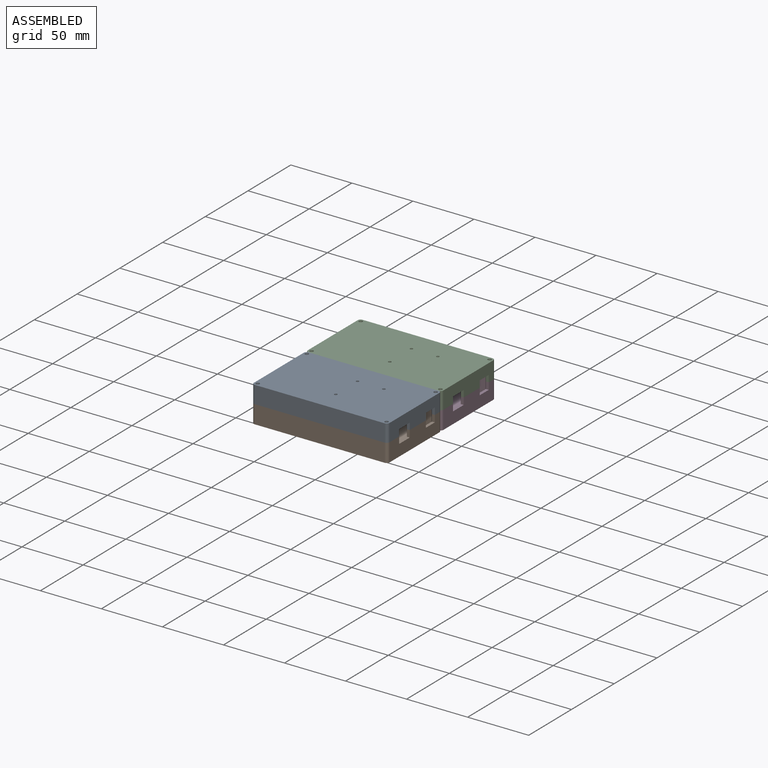
[diagram: assembled view]
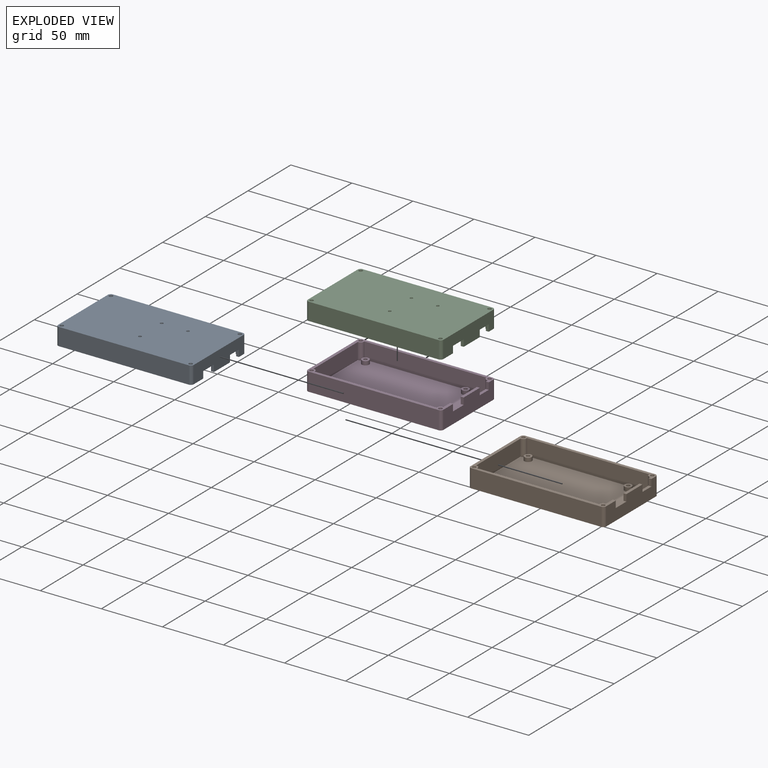
[diagram: exploded view]
GUIDED TOUR — MATED ASSEMBLY (Onshape document 58dac12523504c0f747242aa, AutoMate assembly 58dac12523504c0f747242aa_5d81eeedf38affa4e3de21fd_76b90431ef41d41ae67b2999_default)

This assembly has 4 components, labeled P0..P3 below (a component is one placed occurrence of a part; the same part can appear more than once), held together by 9 mates. A mate is a constraint between two components; its type names the relative motion it leaves free:
  CYLINDRICAL — leaves both rotation about and translation along the listed axis free,
  PLANAR — leaves sliding in the plane through the listed point (normal = the listed direction) and rotation about that normal free.
Axis/direction vectors are unit vectors and 'through' points are millimeter coordinates, both in the assembly's world frame.

MATES
  1. PLANAR "Planar 6": P0 <-> P1, direction (-1.000, 0.000, 0.000) through (-55.56, -84.02, 25.72) mm
  2. CYLINDRICAL "Cylindrical 1": P2 <-> P3, axis (0.000, 0.000, 1.000) through (52.78, -28.76, 14.92) mm
  3. PLANAR "Planar 4": P1 <-> P3, direction (0.000, 0.000, -1.000) through (0.00, -63.07, 0.00) mm
  4. PLANAR "Planar 5": P0 <-> P1, direction (0.000, 0.000, -1.000) through (-53.18, -37.09, 14.92) mm
  5. PLANAR "Planar 7": P0 <-> P1, direction (0.000, -1.000, 0.000) through (0.00, -94.60, 22.07) mm
  6. PLANAR "Planar 3": P1 <-> P3, direction (-1.000, 0.000, 0.000) through (-55.56, -63.07, 0.00) mm
  7. CYLINDRICAL "Cylindrical 2": P2 <-> P3, axis (0.000, 0.000, 1.000) through (-52.78, -28.76, 14.92) mm
  8. PLANAR "Planar 1": P3 <-> P2, direction (0.000, 0.000, 1.000) through (-52.78, -28.76, 14.92) mm
  9. PLANAR "Planar 2": P1 <-> P3, direction (0.000, 1.000, 0.000) through (0.00, -31.53, 7.46) mm

ASSEMBLY ORDER
  1. P3 — the base component [order verified]
  2. P2 [order verified]
  3. P1 [order verified]
  4. P0 [order verified]
Order-tag legend:
  [order verified] — this step's position reverses a verified removal order: the component was checked to insert without passing through the ones already placed.

Of the 4 components, 2 carry the full construction recipe — the FeatureScript program that regenerates the part's solid from scratch; the rest are supplied as boundary geometry only.
Each toured component is shown spotlighted twice — in the assembled view, then in the exploded view, where a leader line traces a displaced component back to its assembled socket (saturated green if recipe-attached, orange if geometry-only; every other component desaturated gray) — followed by its recipe or geometry summary and the mates that hold it.
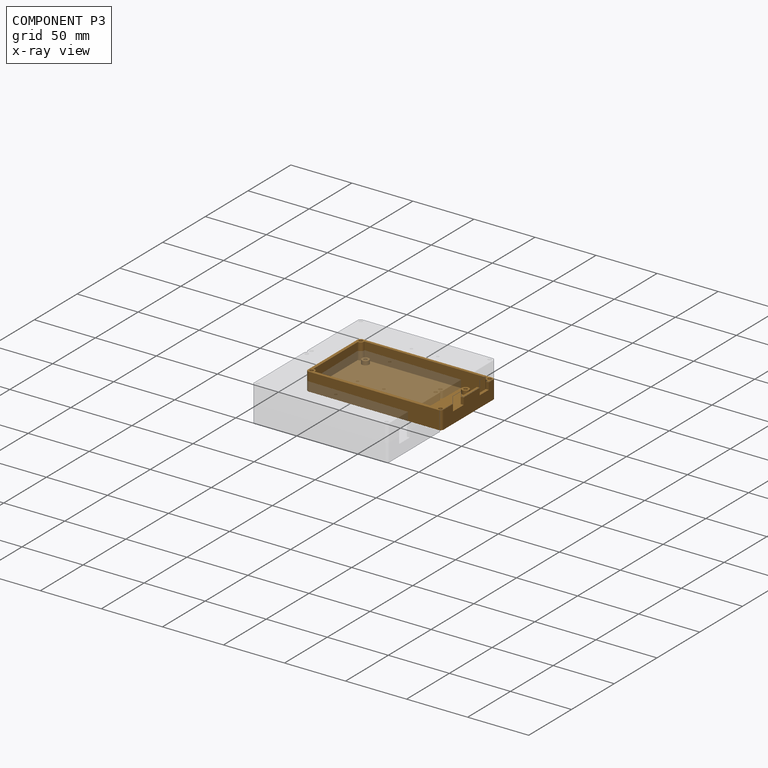
[diagram: component P3 — x-ray view]
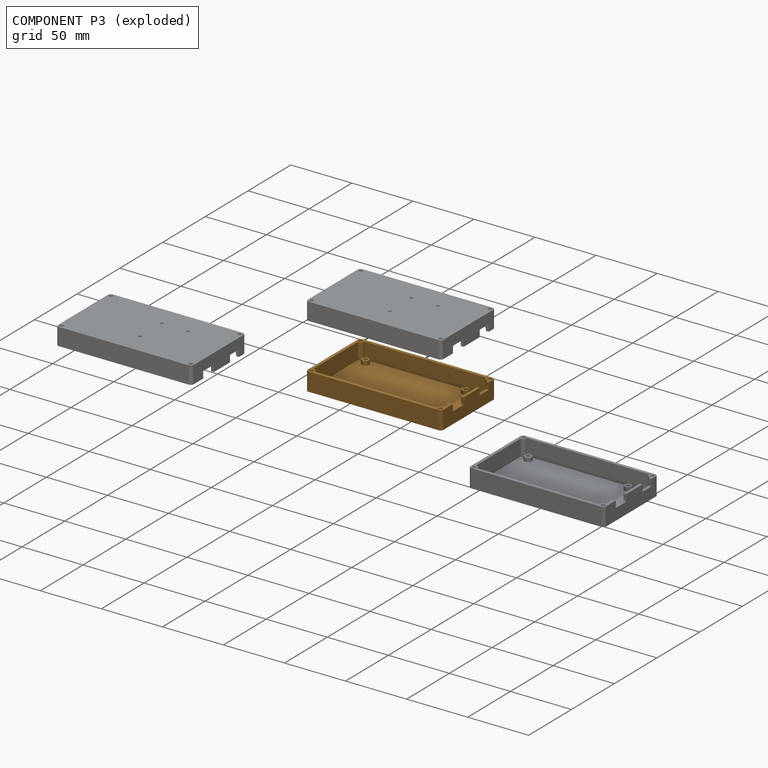
[diagram: component P3 — exploded]
COMPONENT P3 — geometry summary (no construction recipe available for this part):
  bounding box: 111.1 x 63.1 x 14.9 mm
  B-rep topology: 1 solid, 54 faces, 268 edges
  volume: 21808 mm^3 (21% of its bounding box)
Held by: CYLINDRICAL mate "Cylindrical 1" to P2; PLANAR mate "Planar 4" to P1; PLANAR mate "Planar 3" to P1; CYLINDRICAL mate "Cylindrical 2" to P2; PLANAR mate "Planar 1" to P2; PLANAR mate "Planar 2" to P1.
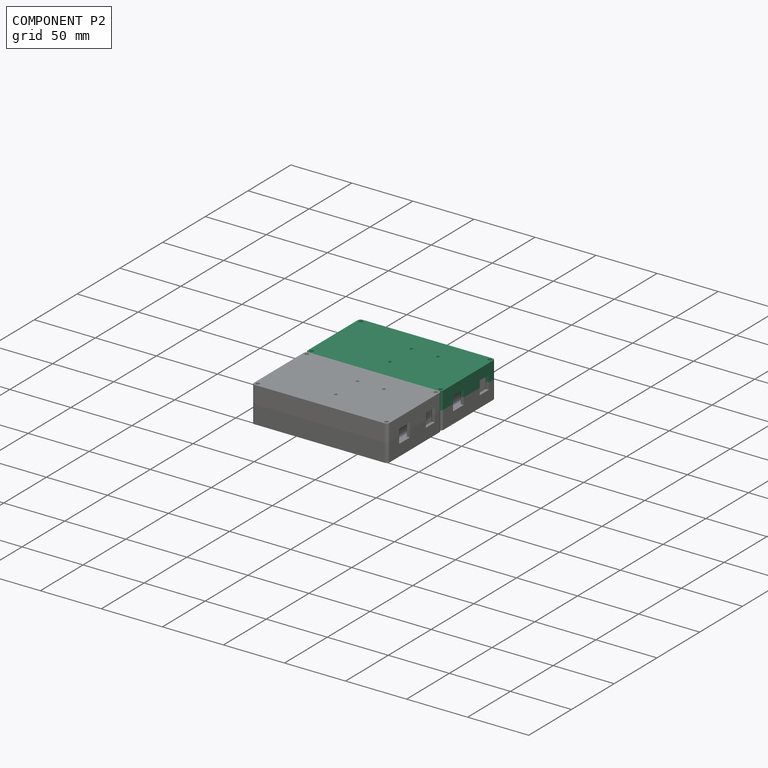
[diagram: component P2 — assembled]
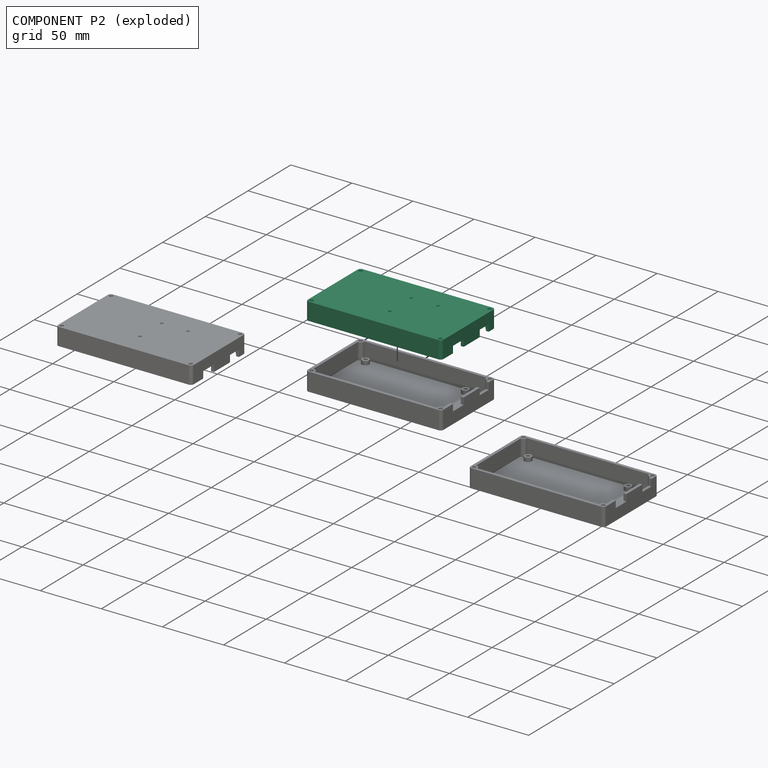
[diagram: component P2 — exploded]
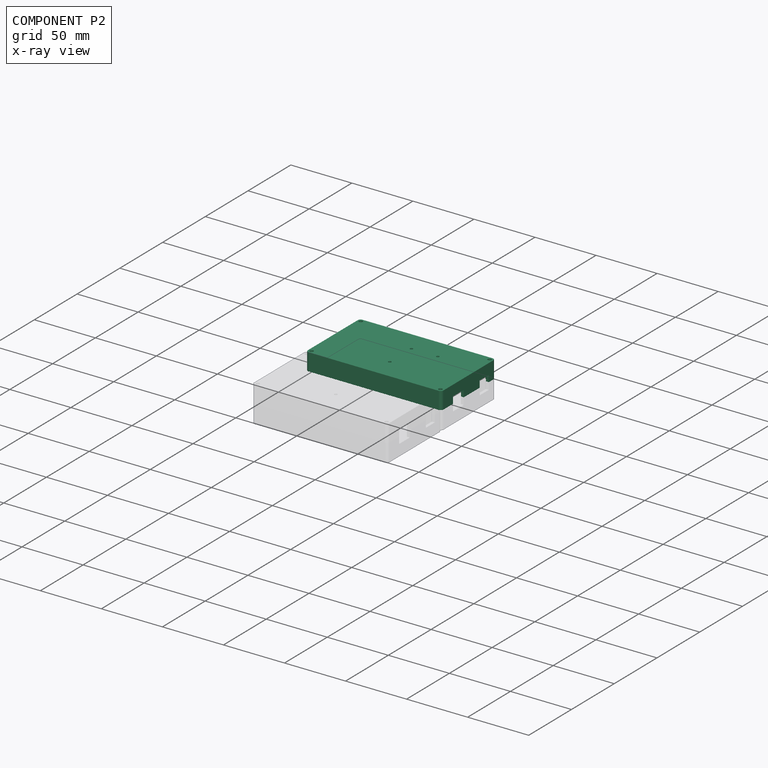
[diagram: component P2 — x-ray view]
COMPONENT P2 — same part as P0 (CADFS 00658293); its construction recipe is shown at P0.
Held by: CYLINDRICAL mate "Cylindrical 1" to P3; CYLINDRICAL mate "Cylindrical 2" to P3; PLANAR mate "Planar 1" to P3.
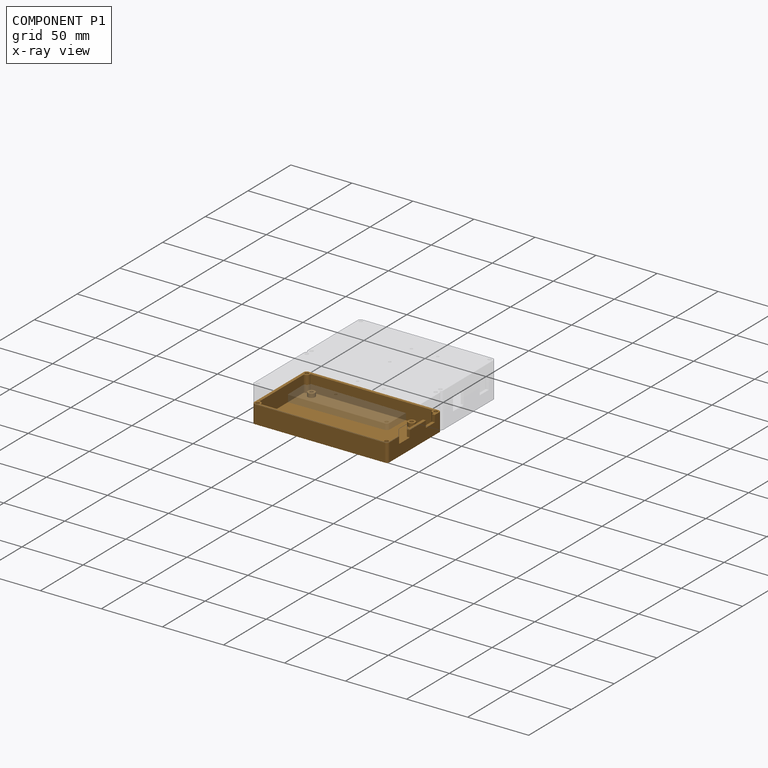
[diagram: component P1 — x-ray view]
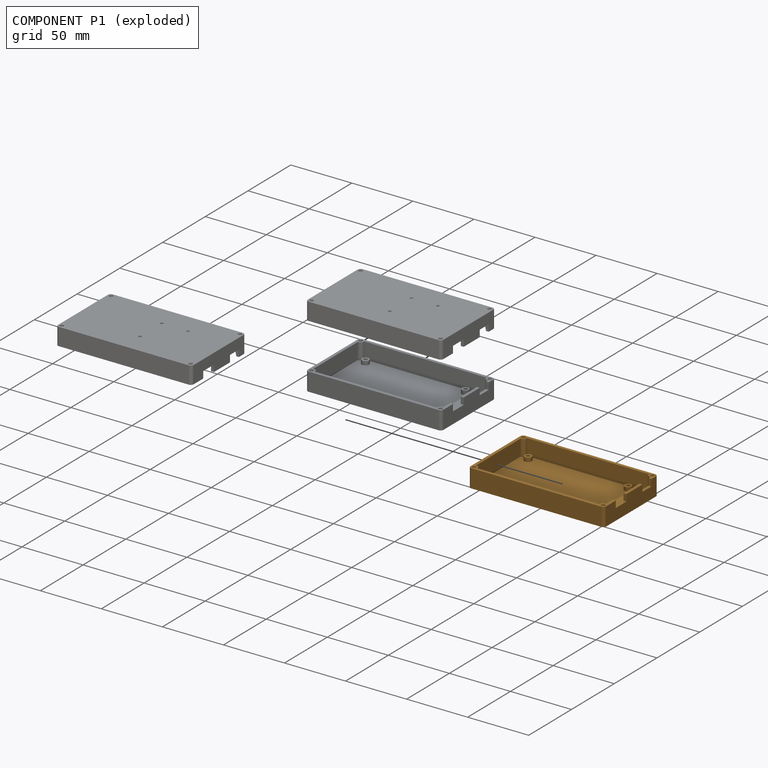
[diagram: component P1 — exploded]
COMPONENT P1 — geometry summary (no construction recipe available for this part):
  bounding box: 111.1 x 63.1 x 14.9 mm
  B-rep topology: 1 solid, 54 faces, 268 edges
  volume: 21808 mm^3 (21% of its bounding box)
Held by: PLANAR mate "Planar 6" to P0; PLANAR mate "Planar 4" to P3; PLANAR mate "Planar 5" to P0; PLANAR mate "Planar 7" to P0; PLANAR mate "Planar 3" to P3; PLANAR mate "Planar 2" to P3.
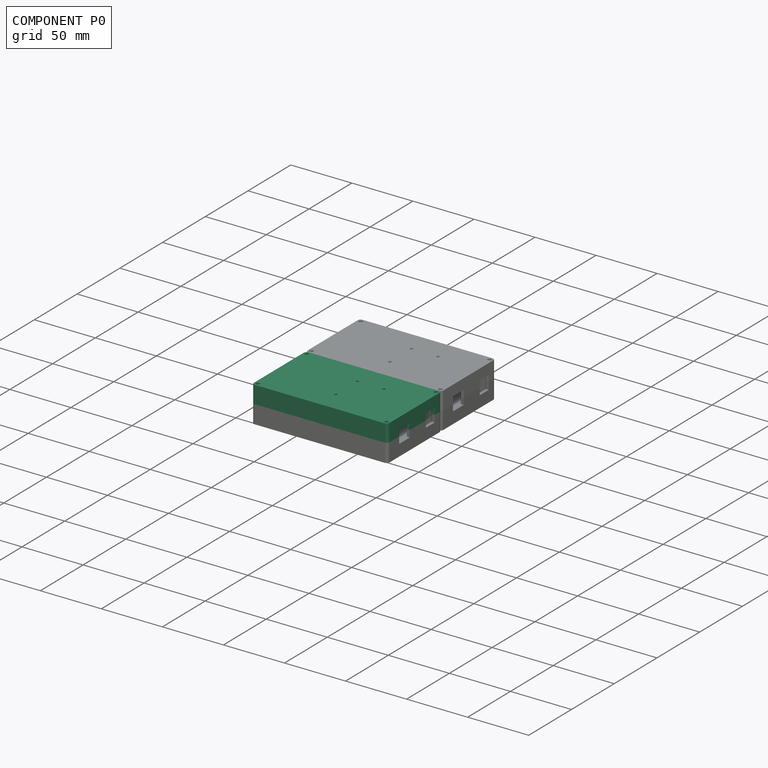
[diagram: component P0 — assembled]
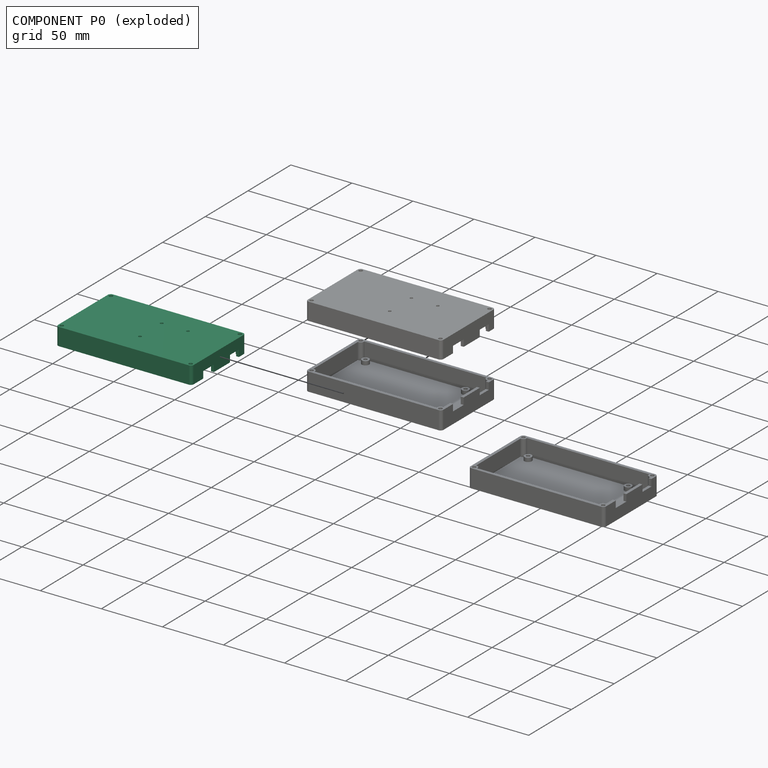
[diagram: component P0 — exploded]
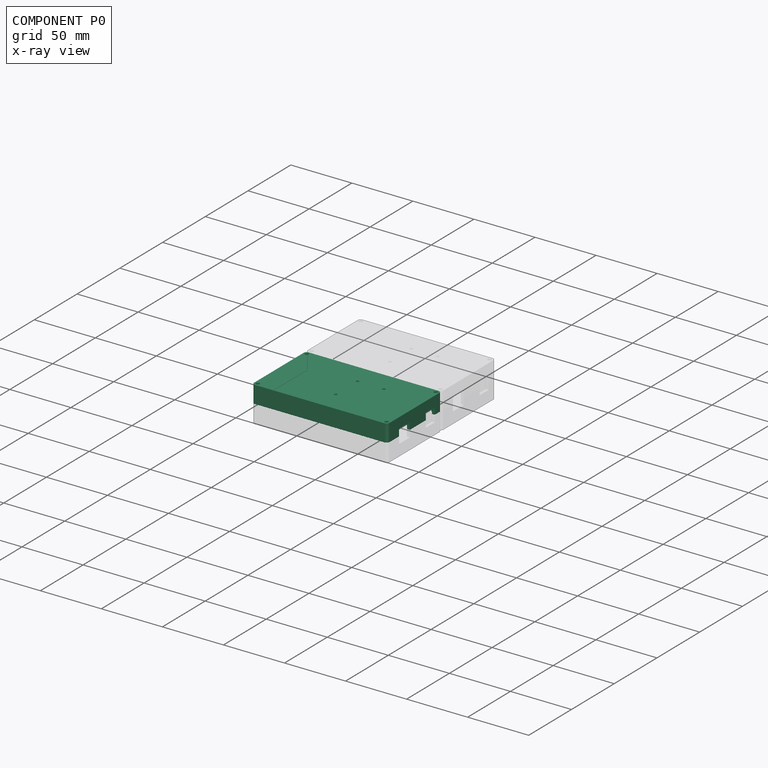
[diagram: component P0 — x-ray view]
COMPONENT P0 — recipe-attached (CADFS 00658293, mesh-verified: the recipe's output STEP matches this component's geometry to below the mesh-comparison resolution (tessellation chordal tolerance ~0.193 mm)).
Held by: PLANAR mate "Planar 6" to P1; PLANAR mate "Planar 5" to P1; PLANAR mate "Planar 7" to P1.
Construction recipe (FeatureScript — the CAD program that rebuilds this solid; sketch coordinates are in the units given by the * unit suffixes, e.g. mm):

FeatureScript 1511;
import(path : "onshape/std/geometry.fs", version : "1511.0");
import(path : "onshape/std/common.fs", version : "1511.0");
const mm = millimeter;
const VERTEX = EntityType.VERTEX;
const EDGE = EntityType.EDGE;
const FACE = EntityType.FACE;
const BODY = EntityType.BODY;
function v(x, y){return vector(x, y);}
function OD(order){return orderDisambiguation(order);}
function OSD(set){return originalSetDisambiguation(set);}
function TD(topology){return topologyDisambiguation(topology);}
function TDD(query){return trueDependencyDisambiguation(query);}
function sQuery(a, b, c) {return sketchEntityQuery(a, b, c);}

annotation { "Feature Type Name" : "Feature", "Feature Type Description" : "" }
export const myFeature = defineFeature(function(context is Context, id is Id, definition is map)
    precondition{}
    {
        {
            var Q0;
            Q0=qCreatedBy(makeId("Top.planeOp"),FACE);
            var sketch = newSketch(context, id + "F0", { "sketchPlane" : qUnion([Q0])});
            skLineSegment(sketch, "E0.bottom", {"start": v(50.8, 26.77) * mm, "end": v(-50.8, 26.77) * mm});
            skLineSegment(sketch, "E0.top", {"start": v(50.8, -26.77) * mm, "end": v(-50.8, -26.77) * mm});
            skLineSegment(sketch, "E0.left", {"start": v(50.8, 26.77) * mm, "end": v(50.8, -26.77) * mm});
            skLineSegment(sketch, "E0.right", {"start": v(-50.8, 26.77) * mm, "end": v(-50.8, -26.77) * mm});
            skPoint(sketch, "E0.middle", {"position": v(0, 0) * mm});
            skSolve(sketch);
        }
        {
            var Q0;
            Q0=qCreatedBy(makeId("Top.planeOp"),FACE);
            var sketch = newSketch(context, id + "F1", { "sketchPlane" : qUnion([Q0])});
            skLineSegment(sketch, "E1.bottom", {"start": v(55.56, 31.53) * mm, "end": v(-55.56, 31.53) * mm});
            skLineSegment(sketch, "E1.top", {"start": v(55.56, -31.53) * mm, "end": v(-55.56, -31.53) * mm});
            skLineSegment(sketch, "E1.left", {"start": v(55.56, 31.53) * mm, "end": v(55.56, -31.53) * mm});
            skLineSegment(sketch, "E1.right", {"start": v(-55.56, 31.53) * mm, "end": v(-55.56, -31.53) * mm});
            skPoint(sketch, "E1.middle", {"position": v(0, 0) * mm});
            skLineSegment(sketch, "E2.bottom", {"start": v(53.97, 29.95) * mm, "end": v(-53.98, 29.95) * mm, "construction": true});
            skLineSegment(sketch, "E2.top", {"start": v(53.98, -29.95) * mm, "end": v(-53.97, -29.95) * mm, "construction": true});
            skLineSegment(sketch, "E2.left", {"start": v(53.97, 29.95) * mm, "end": v(53.98, -29.95) * mm, "construction": true});
            skLineSegment(sketch, "E2.right", {"start": v(-53.98, 29.95) * mm, "end": v(-53.97, -29.95) * mm, "construction": true});
            skSolve(sketch);
        }
        {
            var Q0;
            Q0=makeQuery(id+"F1.imprint","IMPRINT",FACE,{"disambiguationData":[TD([[makeQuery(id+"F1.imprint","IMPRINT",EDGE,{"derivedFrom":sQuery(id+"F1.wireOp",EDGE,"E1.bottom")}),1.0]])]});
            extrude(context, id + "F2", {"entities" : qUnion([Q0]), "depth" : 1.59 * mm, "offsetDistance" : 25.4 * mm});
        }
        {
            var Q0;
            Q0=makeQuery(id+"F2.opExtrude","CAP_FACE",FACE,{"disambiguationData":[OSD([sQuery(id+"F1.wireOp",EDGE,"E1.bottom"),sQuery(id+"F1.wireOp",EDGE,"E1.top"),sQuery(id+"F1.wireOp",EDGE,"E1.left"),sQuery(id+"F1.wireOp",EDGE,"E1.right")])],"isStart":false});
            var sketch = newSketch(context, id + "F3", { "sketchPlane" : qUnion([Q0])});
            skLineSegment(sketch, "E3.bottom", {"start": v(55.56, 31.53) * mm, "end": v(-55.56, 31.53) * mm});
            skLineSegment(sketch, "E3.top", {"start": v(55.56, -31.53) * mm, "end": v(-55.56, -31.53) * mm});
            skLineSegment(sketch, "E3.left", {"start": v(55.56, 31.53) * mm, "end": v(55.56, -31.53) * mm});
            skLineSegment(sketch, "E3.right", {"start": v(-55.56, 31.53) * mm, "end": v(-55.56, -31.53) * mm});
            skPoint(sketch, "E3.middle", {"position": v(0, 0) * mm});
            skLineSegment(sketch, "E4.left", {"start": v(53.18, 25.98) * mm, "end": v(53.18, -25.98) * mm});
            skLineSegment(sketch, "E4.right", {"start": v(-53.18, 25.98) * mm, "end": v(-53.18, -25.98) * mm});
            skArc(sketch, "E5", {"start": v(-52.78, 25.98) * mm, "mid": v(-50.82, 26.8) * mm, "end": v(-50, 28.76) * mm});
            skCircle(sketch, "E6", {"center": v(-52.78, 28.76) * mm, "radius": 1.5 * mm});
            skLineSegment(sketch, "E7", {"start": v(-50, 28.76) * mm, "end": v(-50, 29.15) * mm});
            skLineSegment(sketch, "E8", {"start": v(-52.78, 25.98) * mm, "end": v(-53.18, 25.98) * mm});
            skLineSegment(sketch, "E9", {"start": v(-55.56, 31.53) * mm, "end": v(-50.82, 26.8) * mm, "construction": true});
            skPoint(sketch, "E10", {"position": v(-53.2, 29.16) * mm});
            skPoint(sketch, "E11.orphan", {"position": v(-53.18, 37.1) * mm});
            skCircle(sketch, "E12.MirrorC", {"center": v(-52.78, -28.76) * mm, "radius": 1.5 * mm});
            skLineSegment(sketch, "E13.MirrorCS", {"start": v(-52.78, -25.98) * mm, "end": v(-53.18, -25.98) * mm});
            skArc(sketch, "E14.MirrorCS", {"start": v(-52.78, -25.98) * mm, "mid": v(-50.82, -26.8) * mm, "end": v(-50, -28.76) * mm});
            skLineSegment(sketch, "E15.MirrorCS", {"start": v(-50, -28.76) * mm, "end": v(-50, -29.15) * mm});
            skCircle(sketch, "E16.MirrorC", {"center": v(52.78, 28.76) * mm, "radius": 1.5 * mm});
            skLineSegment(sketch, "E17.MirrorCS", {"start": v(50, 28.76) * mm, "end": v(50, 29.15) * mm});
            skArc(sketch, "E18.MirrorCS", {"start": v(52.78, 25.98) * mm, "mid": v(50.82, 26.8) * mm, "end": v(50, 28.76) * mm});
            skLineSegment(sketch, "E19.MirrorCS", {"start": v(52.78, 25.98) * mm, "end": v(53.18, 25.98) * mm});
            skCircle(sketch, "E20.MirrorC", {"center": v(52.78, -28.76) * mm, "radius": 1.5 * mm});
            skLineSegment(sketch, "E21.MirrorCS", {"start": v(52.78, -25.98) * mm, "end": v(53.18, -25.98) * mm});
            skArc(sketch, "E22.MirrorCS", {"start": v(52.78, -25.98) * mm, "mid": v(50.82, -26.8) * mm, "end": v(50, -28.76) * mm});
            skLineSegment(sketch, "E23.MirrorCS", {"start": v(50, -28.76) * mm, "end": v(50, -29.15) * mm});
            skPoint(sketch, "E24.orphan", {"position": v(-53.18, -36.9) * mm});
            skLineSegment(sketch, "E25.trimOffspring", {"start": v(50, -29.15) * mm, "end": v(-50, -29.15) * mm});
            skPoint(sketch, "E26.orphan", {"position": v(53.18, -37.1) * mm});
            skLineSegment(sketch, "E27.trimOffspring", {"start": v(50, 29.15) * mm, "end": v(-50, 29.15) * mm});
            skPoint(sketch, "E28.orphan", {"position": v(53.18, 36.9) * mm});
            skSolve(sketch);
        }
        {
            var Q0;
            Q0=qSketchRegion(id+"F3",true);
            extrude(context, id + "F4", {"entities" : qUnion([Q0]), "operationType" : NewBodyOperationType.ADD, "depth" : 12.7 * mm, "offsetDistance" : 25.4 * mm});
        }
        {
            var Q0;
            Q0=makeQuery(id+"F4.boolean.opBoolean","MERGE",EDGE,{"derivedFrom":[makeQuery(id+"F2.opExtrude","SWEPT_EDGE",EDGE,{"disambiguationData":[OSD([sQuery(id+"F1.wireOp",EDGE,"E1.top"),sQuery(id+"F1.wireOp",EDGE,"E1.left")])]}),makeQuery(id+"F4.opExtrude","SWEPT_EDGE",EDGE,{"disambiguationData":[OSD([sQuery(id+"F3.wireOp",EDGE,"E3.top"),sQuery(id+"F3.wireOp",EDGE,"E3.left")])]})]});
            var Q1;
            Q1=makeQuery(id+"F4.boolean.opBoolean","MERGE",EDGE,{"derivedFrom":[makeQuery(id+"F2.opExtrude","SWEPT_EDGE",EDGE,{"disambiguationData":[OSD([sQuery(id+"F1.wireOp",EDGE,"E1.bottom"),sQuery(id+"F1.wireOp",EDGE,"E1.left")])]}),makeQuery(id+"F4.opExtrude","SWEPT_EDGE",EDGE,{"disambiguationData":[OSD([sQuery(id+"F3.wireOp",EDGE,"E3.bottom"),sQuery(id+"F3.wireOp",EDGE,"E3.left")])]})]});
            var Q2;
            Q2=makeQuery(id+"F4.boolean.opBoolean","MERGE",EDGE,{"derivedFrom":[makeQuery(id+"F2.opExtrude","SWEPT_EDGE",EDGE,{"disambiguationData":[OSD([sQuery(id+"F1.wireOp",EDGE,"E1.top"),sQuery(id+"F1.wireOp",EDGE,"E1.right")])]}),makeQuery(id+"F4.opExtrude","SWEPT_EDGE",EDGE,{"disambiguationData":[OSD([sQuery(id+"F3.wireOp",EDGE,"E3.top"),sQuery(id+"F3.wireOp",EDGE,"E3.right")])]})]});
            var Q3;
            Q3=makeQuery(id+"F4.boolean.opBoolean","MERGE",EDGE,{"derivedFrom":[makeQuery(id+"F2.opExtrude","SWEPT_EDGE",EDGE,{"disambiguationData":[OSD([sQuery(id+"F1.wireOp",EDGE,"E1.bottom"),sQuery(id+"F1.wireOp",EDGE,"E1.right")])]}),makeQuery(id+"F4.opExtrude","SWEPT_EDGE",EDGE,{"disambiguationData":[OSD([sQuery(id+"F3.wireOp",EDGE,"E3.bottom"),sQuery(id+"F3.wireOp",EDGE,"E3.right")])]})]});
            fillet(context, id + "F5", {"entities" : qUnion([Q0, Q1, Q2, Q3]), "radius" : 2.38 * mm, "tangentPropagation" : true, "allowEdgeOverflow" : false});
        }
        {
            var Q0;
            Q0=makeQuery(id+"F4.boolean.opBoolean","MERGE",FACE,{"derivedFrom":[makeQuery(id+"F2.opExtrude","SWEPT_FACE",FACE,{"disambiguationData":[OSD([sQuery(id+"F1.wireOp",EDGE,"E1.left")])]}),makeQuery(id+"F4.opExtrude","SWEPT_FACE",FACE,{"disambiguationData":[OSD([sQuery(id+"F3.wireOp",EDGE,"E3.left")])]})]});
            var sketch = newSketch(context, id + "F6", { "sketchPlane" : qUnion([Q0])});
            skLineSegment(sketch, "E29.bottom", {"start": v(-23.77, 14.29) * mm, "end": v(-13.27, 14.29) * mm});
            skLineSegment(sketch, "E29.top", {"start": v(-23.77, 8.76) * mm, "end": v(-13.27, 8.76) * mm});
            skLineSegment(sketch, "E29.left", {"start": v(-23.77, 14.29) * mm, "end": v(-23.77, 8.76) * mm});
            skLineSegment(sketch, "E29.right", {"start": v(-13.27, 14.29) * mm, "end": v(-13.27, 8.76) * mm});
            skLineSegment(sketch, "E30.bottom", {"start": v(5.52, 14.29) * mm, "end": v(18.02, 14.29) * mm});
            skLineSegment(sketch, "E30.top", {"start": v(5.52, 8.76) * mm, "end": v(18.02, 8.76) * mm});
            skLineSegment(sketch, "E30.left", {"start": v(5.52, 14.29) * mm, "end": v(5.52, 8.76) * mm});
            skLineSegment(sketch, "E30.right", {"start": v(18.02, 14.29) * mm, "end": v(18.02, 8.76) * mm});
            skLineSegment(sketch, "E31", {"start": v(-26.77, 14.29) * mm, "end": v(-26.77, 0) * mm, "construction": true});
            skLineSegment(sketch, "E32.MirrorCS", {"start": v(26.77, 14.29) * mm, "end": v(26.77, 0) * mm, "construction": true});
            skPoint(sketch, "E33", {"position": v(11.77, 8.76) * mm});
            skSolve(sketch);
        }
        {
            var Q0;
            Q0=qSketchRegion(id+"F6",true);
            extrude(context, id + "F7", {"entities" : qUnion([Q0]), "operationType" : NewBodyOperationType.REMOVE, "endBound" : BoundingType.UP_TO_NEXT, "oppositeDirection" : true, "depth" : 25.4 * mm, "offsetDistance" : 25.4 * mm});
        }
        {
            var Q0;
            Q0=makeQuery(id+"F0.imprint","IMPRINT",FACE,{"disambiguationData":[TD([[makeQuery(id+"F0.imprint","IMPRINT",EDGE,{"derivedFrom":sQuery(id+"F0.wireOp",EDGE,"E0.bottom")}),1.0]])]});
            var sketch = newSketch(context, id + "F8", { "sketchPlane" : qUnion([Q0])});
            skLineSegment(sketch, "E34.bottom", {"start": v(-42.55, -25.36) * mm, "end": v(33.02, -25.36) * mm});
            skLineSegment(sketch, "E34.top", {"start": v(-42.55, -22.18) * mm, "end": v(33.02, -22.18) * mm});
            skLineSegment(sketch, "E34.left", {"start": v(-42.55, -25.36) * mm, "end": v(-42.55, -22.18) * mm});
            skLineSegment(sketch, "E34.right", {"start": v(33.02, -25.36) * mm, "end": v(33.02, -22.18) * mm});
            skPoint(sketch, "E35", {"position": v(-42.55, -23.77) * mm});
            skLineSegment(sketch, "E36.MirrorCS", {"start": v(33.02, 25.36) * mm, "end": v(33.02, 22.18) * mm});
            skLineSegment(sketch, "E37.MirrorCS", {"start": v(-42.55, 25.36) * mm, "end": v(-42.55, 22.18) * mm});
            skLineSegment(sketch, "E38.MirrorCS", {"start": v(-42.55, 22.18) * mm, "end": v(33.02, 22.18) * mm});
            skLineSegment(sketch, "E39.MirrorCS", {"start": v(-42.55, 25.36) * mm, "end": v(33.02, 25.36) * mm});
            skPoint(sketch, "E40.MirrorP", {"position": v(-42.55, 23.77) * mm});
            skSolve(sketch);
        }
        {
            var Q0;
            Q0=makeQuery(id+"F4.boolean.opBoolean","MERGE",FACE,{"derivedFrom":[makeQuery(id+"F2.opExtrude","SWEPT_FACE",FACE,{"disambiguationData":[OSD([sQuery(id+"F1.wireOp",EDGE,"E1.right")])]}),makeQuery(id+"F4.opExtrude","SWEPT_FACE",FACE,{"disambiguationData":[OSD([sQuery(id+"F3.wireOp",EDGE,"E3.right")])]})]});
            var sketch = newSketch(context, id + "F9", { "sketchPlane" : qUnion([Q0])});
            skLineSegment(sketch, "E41", {"start": v(-19.05, 14.29) * mm, "end": v(19.05, 14.29) * mm});
            skLineSegment(sketch, "E42", {"start": v(19.05, 14.29) * mm, "end": v(20.95, 3.5) * mm});
            skLineSegment(sketch, "E43", {"start": v(20.95, 3.5) * mm, "end": v(-20.96, 3.5) * mm});
            skLineSegment(sketch, "E44", {"start": v(-20.96, 3.5) * mm, "end": v(-19.05, 14.29) * mm});
            skPoint(sketch, "E45", {"position": v(0, 14.29) * mm});
            skPoint(sketch, "E46", {"position": v(0, 3.5) * mm});
            skCircle(sketch, "E47", {"center": v(-23.5, 8.9) * mm, "radius": 1.59 * mm});
            skCircle(sketch, "E48", {"center": v(23.5, 8.9) * mm, "radius": 1.59 * mm});
            skLineSegment(sketch, "E49", {"start": v(0, 14.29) * mm, "end": v(0, 3.5) * mm, "construction": true});
            skPoint(sketch, "E50", {"position": v(0, 8.89) * mm});
            skSolve(sketch);
        }
        {
            var Q0;
            Q0=qSketchRegion(id+"F9",true);
            extrude(context, id + "F10", {"entities" : qUnion([Q0]), "operationType" : NewBodyOperationType.REMOVE, "endBound" : BoundingType.UP_TO_NEXT, "oppositeDirection" : true, "depth" : 25.4 * mm, "offsetDistance" : 25.4 * mm});
        }
        {
            var Q0;
            Q0=makeQuery(id+"F4.boolean.opBoolean","SPLIT",FACE,{"disambiguationData":[TD([makeQuery(id+"F4.opExtrude","SWEPT_FACE",FACE,{"disambiguationData":[OSD([sQuery(id+"F3.wireOp",EDGE,"E4.left")])]})])],"derivedFrom":makeQuery(id+"F2.opExtrude","CAP_FACE",FACE,{"disambiguationData":[OSD([sQuery(id+"F1.wireOp",EDGE,"E1.bottom"),sQuery(id+"F1.wireOp",EDGE,"E1.top"),sQuery(id+"F1.wireOp",EDGE,"E1.left"),sQuery(id+"F1.wireOp",EDGE,"E1.right")])],"isStart":false})});
            var sketch = newSketch(context, id + "F11", { "sketchPlane" : qUnion([Q0])});
            skCircle(sketch, "E51", {"center": v(0, 12.7) * mm, "radius": 2.38 * mm});
            skCircle(sketch, "E52.MirrorC", {"center": v(0, -12.7) * mm, "radius": 2.38 * mm});
            skCircle(sketch, "E53", {"center": v(21.59, -12.7) * mm, "radius": 2.38 * mm});
            skSolve(sketch);
        }
        {
            var Q0;
            Q0=qSketchRegion(id+"F11",true);
            extrude(context, id + "F12", {"entities" : qUnion([Q0]), "operationType" : NewBodyOperationType.ADD, "depth" : 3.17 * mm, "offsetDistance" : 25.4 * mm});
        }
        {
            var Q0;
            Q0=makeQuery(id+"F12.opExtrude","CAP_FACE",FACE,{"disambiguationData":[OSD([sQuery(id+"F11.wireOp",EDGE,"E51")])],"isStart":false});
            var sketch = newSketch(context, id + "F13", { "sketchPlane" : qUnion([Q0])});
            skCircle(sketch, "E54", {"center": v(0, 12.7) * mm, "radius": 1.2 * mm});
            skCircle(sketch, "E55.MirrorC", {"center": v(0, -12.7) * mm, "radius": 1.2 * mm});
            skCircle(sketch, "E56", {"center": v(21.59, -12.7) * mm, "radius": 1.2 * mm});
            skSolve(sketch);
        }
        {
            var Q0;
            Q0=qSketchRegion(id+"F13",true);
            extrude(context, id + "F14", {"entities" : qUnion([Q0]), "operationType" : NewBodyOperationType.REMOVE, "endBound" : BoundingType.THROUGH_ALL, "oppositeDirection" : true, "depth" : 25.4 * mm, "offsetDistance" : 25.4 * mm});
        }
        {
            var Q0;
            {var subQ0=sQuery(id+"F3.wireOp",EDGE,"E6");var subQ2=sQuery(id+"F3.wireOp",EDGE,"E5");var subQ4=sQuery(id+"F3.wireOp",EDGE,"E4.right");var subQ6=sQuery(id+"F3.wireOp",EDGE,"E4.left");var subQ8=sQuery(id+"F3.wireOp",EDGE,"E3.right");var subQ10=sQuery(id+"F1.wireOp",EDGE,"E1.bottom");var subQ11=makeQuery(id+"F2.opExtrude","SWEPT_FACE",FACE,{"disambiguationData":[OSD([subQ10])]});var subQ12=sQuery(id+"F3.wireOp",EDGE,"E19.MirrorCS");var subQ14=sQuery(id+"F3.wireOp",EDGE,"E3.bottom");var subQ17=sQuery(id+"F3.wireOp",EDGE,"E3.left");var subQ23=sQuery(id+"F3.wireOp",EDGE,"E7");var subQ25=sQuery(id+"F3.wireOp",EDGE,"E8");var subQ28=sQuery(id+"F3.wireOp",EDGE,"E16.MirrorC");var subQ30=sQuery(id+"F3.wireOp",EDGE,"E17.MirrorCS");var subQ32=sQuery(id+"F3.wireOp",EDGE,"E18.MirrorCS");var subQ35=sQuery(id+"F3.wireOp",EDGE,"E27.trimOffspring");var subQ37=sQuery(id+"F3.wireOp",EDGE,"E15.MirrorCS");var subQ38=sQuery(id+"F3.wireOp",EDGE,"E14.MirrorCS");var subQ39=sQuery(id+"F3.wireOp",EDGE,"E13.MirrorCS");var subQ40=sQuery(id+"F3.wireOp",EDGE,"E12.MirrorC");var subQ41=sQuery(id+"F3.wireOp",EDGE,"E3.top");var subQ43=sQuery(id+"F3.wireOp",EDGE,"E22.MirrorCS");var subQ44=sQuery(id+"F3.wireOp",EDGE,"E25.trimOffspring");var subQ45=sQuery(id+"F3.wireOp",EDGE,"E23.MirrorCS");var subQ46=sQuery(id+"F3.wireOp",EDGE,"E20.MirrorC");var subQ47=sQuery(id+"F3.wireOp",EDGE,"E21.MirrorCS");Q0=makeQuery(id+"F10.boolean.opBoolean","SPLIT",FACE,{"disambiguationData":[TD([subQ11])],"derivedFrom":makeQuery(id+"F7.boolean.opBoolean","SPLIT",FACE,{"disambiguationData":[TD([subQ11])],"derivedFrom":makeQuery(id+"F4.opExtrude","CAP_FACE",FACE,{"disambiguationData":[OSD([subQ14,subQ41,subQ17,subQ8,subQ6,subQ4,subQ2,subQ0,subQ23,subQ25,subQ40,subQ39,subQ38,subQ37,subQ28,subQ30,subQ32,subQ12,subQ46,subQ47,subQ43,subQ45,subQ44,subQ35])],"isStart":false})})});}
            var sketch = newSketch(context, id + "F15", { "sketchPlane" : qUnion([Q0])});
            skCircle(sketch, "E57.0", {"center": v(52.78, 28.76) * mm, "radius": 1.5 * mm});
            skCircle(sketch, "E58.0", {"center": v(52.78, -28.76) * mm, "radius": 1.5 * mm});
            skCircle(sketch, "E59.0", {"center": v(-52.78, -28.76) * mm, "radius": 1.5 * mm});
            skCircle(sketch, "E60.0", {"center": v(-52.78, 28.76) * mm, "radius": 1.5 * mm});
            skSolve(sketch);
        }
        {
            var Q0;
            Q0=qSketchRegion(id+"F15",true);
            extrude(context, id + "F16", {"entities" : qUnion([Q0]), "operationType" : NewBodyOperationType.REMOVE, "endBound" : BoundingType.THROUGH_ALL, "oppositeDirection" : true, "depth" : 25.4 * mm, "offsetDistance" : 25.4 * mm});
        }
    });
PROVENANCE & LICENSES
Assembly (occurrences, transforms, mates, per-part STEP geometry): AutoMate dataset, Zenodo record 7776208, CC0.
Construction recipes: CADFS (HuggingFace VladPyatov/CADFS, CC-BY-4.0, layered over the ABC dataset), FeatureScript reconstruction programs keyed by ABC model id.
Join: ABC meta listings map ABC model id -> Onshape documentId; within a shared document, parts are matched by geometric signature (bounding-box dims + volume at 0.1% relative tolerance, exact B-rep face/solid counts).
Verification: 2 of this assembly's 4 components carry a recipe attachment, and every attachment is mesh-verified: the CADFS STEP and the AutoMate member STEP were compared as meshes in their shared local frame (symmetric sampled-point-to-mesh distance); worst across the 2 attachments: below the mesh-comparison resolution (tessellation chordal tolerance ~0.193 mm) on a 129 mm part.
Renders: orthographic iso camera (az 35 / el 25); the floor grid conveys scale (grid pitch printed in each image; no ruler). In the exploded view each component is displaced by its stored offset vector: the offsets alone carry the explosion direction (mate normal/axis signs are not orientation cues and do not encode it), and separation distances are assigned per mate-chain, not proportionally to assembly-order depth.
